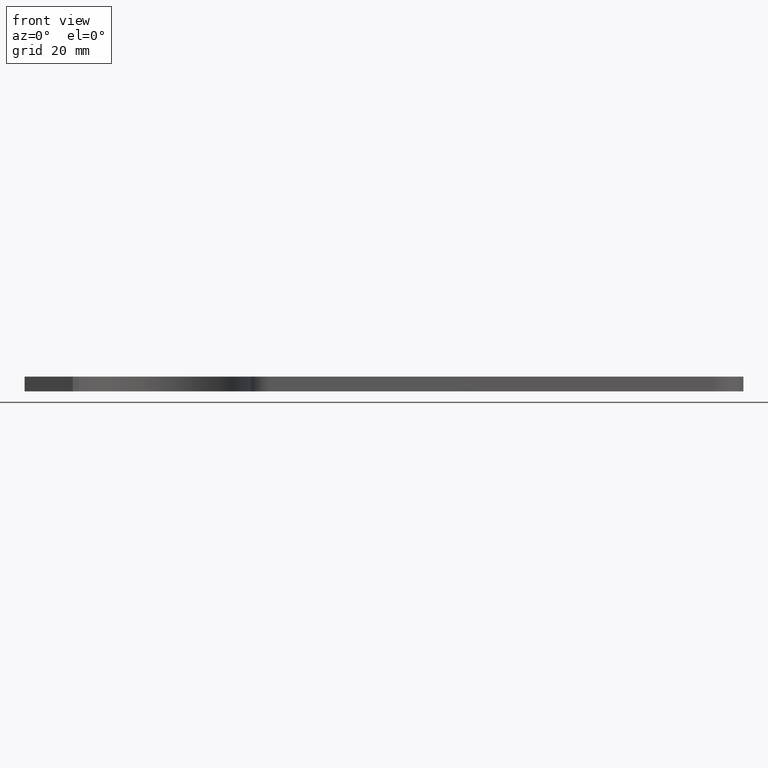
[diagram: clean part render]
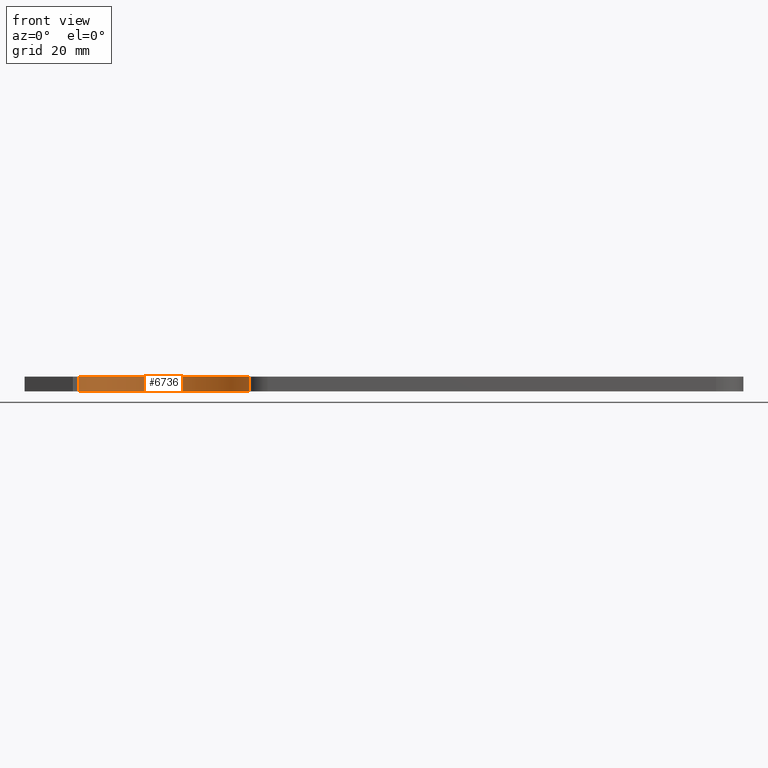
[diagram: same view with one face highlighted and labeled with its STEP entity id]
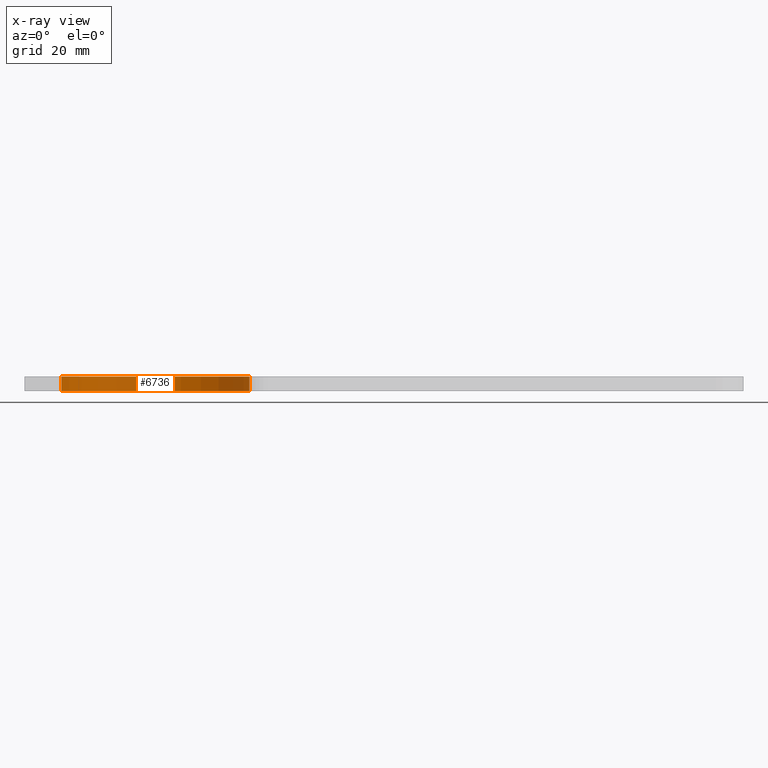
[diagram: x-ray of the same camera — body ghosted, the highlighted face saturated]
A machine part, front view. The second image highlights one B-rep face of the part: STEP entity #6736.
The next image is the same camera in x-ray: the body ghosted, the highlighted face saturated — about 0% of this face is hidden behind the body in this view.
In plain terms, the highlighted cylindrical surface (partial cylindrical patch) has radius 26.2 mm, axis along (-0, -0, -1).
Its self-contained STEP definition (entity closure, byte-faithful):
#435 = VECTOR ( 'NONE', #7808, 1000.000000000000000 ) ;
#1230 = AXIS2_PLACEMENT_3D ( 'NONE', #10189, #9037, #9121 ) ;
#1533 = CARTESIAN_POINT ( 'NONE',  ( 60.98594712416921500, -4.649071213977801900, 4.000000000000000000 ) ) ;
#1794 = CARTESIAN_POINT ( 'NONE',  ( 9.848552261849087900, -1.951205264226185200, 0.0000000000000000000 ) ) ;
#2967 = EDGE_LOOP ( 'NONE', ( #10942, #11346, #3841, #7599 ) ) ;
#3210 = DIRECTION ( 'NONE',  ( -0.0000000000000000000, -0.0000000000000000000, -1.000000000000000000 ) ) ;
#3281 = EDGE_CURVE ( 'NONE', #9800, #6118, #5702, .T. ) ;
#3841 = ORIENTED_EDGE ( 'NONE', *, *, #4011, .F. ) ;
#3948 = CARTESIAN_POINT ( 'NONE',  ( 9.848552261849087900, -1.951205264226185200, 4.000000000000000000 ) ) ;
#4011 = EDGE_CURVE ( 'NONE', #9800, #9976, #11784, .T. ) ;
#4123 = CARTESIAN_POINT ( 'NONE',  ( 35.12457114401065900, -8.847789162694002800, 4.000000000000000000 ) ) ;
#4283 = DIRECTION ( 'NONE',  ( 1.000000000000000000, 0.0000000000000000000, 0.0000000000000000000 ) ) ;
#4561 = EDGE_CURVE ( 'NONE', #6118, #5880, #6493, .T. ) ;
#5419 = CARTESIAN_POINT ( 'NONE',  ( 35.12457114401065900, -8.847789162694002800, 0.0000000000000000000 ) ) ;
#5702 = LINE ( 'NONE', #3948, #435 ) ;
#5818 = CYLINDRICAL_SURFACE ( 'NONE', #10594, 26.19999999999987800 ) ;
#5880 = VERTEX_POINT ( 'NONE', #13132 ) ;
#6118 = VERTEX_POINT ( 'NONE', #1794 ) ;
#6493 = CIRCLE ( 'NONE', #10828, 26.19999999999987500 ) ;
#6736 = ADVANCED_FACE ( 'NONE', ( #9839 ), #5818, .F. ) ;
#6826 = CARTESIAN_POINT ( 'NONE',  ( 9.848552261849087900, -1.951205264226185200, 4.000000000000000000 ) ) ;
#7057 = CARTESIAN_POINT ( 'NONE',  ( 60.98594712416921500, -4.649071213977801900, 4.000000000000000000 ) ) ;
#7599 = ORIENTED_EDGE ( 'NONE', *, *, #3281, .T. ) ;
#7808 = DIRECTION ( 'NONE',  ( -0.0000000000000000000, -0.0000000000000000000, -1.000000000000000000 ) ) ;
#8690 = DIRECTION ( 'NONE',  ( -0.0000000000000000000, -0.0000000000000000000, -1.000000000000000000 ) ) ;
#9037 = DIRECTION ( 'NONE',  ( -0.0000000000000000000, -0.0000000000000000000, -1.000000000000000000 ) ) ;
#9121 = DIRECTION ( 'NONE',  ( 1.000000000000000000, 0.0000000000000000000, 0.0000000000000000000 ) ) ;
#9800 = VERTEX_POINT ( 'NONE', #6826 ) ;
#9839 = FACE_OUTER_BOUND ( 'NONE', #2967, .T. ) ;
#9976 = VERTEX_POINT ( 'NONE', #7057 ) ;
#10189 = CARTESIAN_POINT ( 'NONE',  ( 35.12457114401065900, -8.847789162694002800, 4.000000000000000000 ) ) ;
#10582 = LINE ( 'NONE', #1533, #12950 ) ;
#10594 = AXIS2_PLACEMENT_3D ( 'NONE', #4123, #3210, #11258 ) ;
#10828 = AXIS2_PLACEMENT_3D ( 'NONE', #5419, #12535, #4283 ) ;
#10942 = ORIENTED_EDGE ( 'NONE', *, *, #4561, .T. ) ;
#11258 = DIRECTION ( 'NONE',  ( -1.000000000000000000, 0.0000000000000000000, 0.0000000000000000000 ) ) ;
#11259 = EDGE_CURVE ( 'NONE', #9976, #5880, #10582, .T. ) ;
#11346 = ORIENTED_EDGE ( 'NONE', *, *, #11259, .F. ) ;
#11784 = CIRCLE ( 'NONE', #1230, 26.19999999999987500 ) ;
#12535 = DIRECTION ( 'NONE',  ( -0.0000000000000000000, -0.0000000000000000000, -1.000000000000000000 ) ) ;
#12950 = VECTOR ( 'NONE', #8690, 1000.000000000000000 ) ;
#13132 = CARTESIAN_POINT ( 'NONE',  ( 60.98594712416921500, -4.649071213977801900, 0.0000000000000000000 ) ) ;